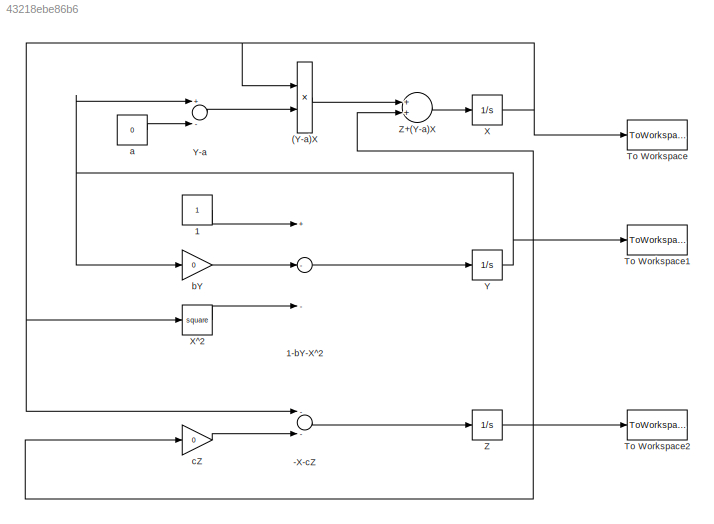
MODEL slx_43218ebe86b6
KIND model
CONFIG AbsTol = auto
CONFIG EnableMultiTasking = off
CONFIG FixedStep = 0.1
CONFIG MaxStep = auto
CONFIG MinStep = auto
CONFIG RelTol = 1e-3
CONFIG SampleTimeConstraint = Unconstrained
CONFIG Solver = ode4
CONFIG SolverName = ode4
CONFIG StartTime = 0
CONFIG StopTime = 500
BLOCK [Product] (Y-a)X
  InputSameDT = off
  OutDataTypeStr = Inherit: Inherit via internal rule
  Ports = [2, 1]
  RndMeth = Floor
  SaturateOnIntegerOverflow = off
BLOCK [Sum] -X-cZ
  InputSameDT = off
  Inputs = --
  OutDataTypeStr = Inherit: Inherit via internal rule
  Ports = [2, 1]
  SaturateOnIntegerOverflow = off
BLOCK [Constant] 1 
BLOCK [Sum] 1-bY-X^2
  InputSameDT = off
  Inputs = +--
  OutDataTypeStr = Inherit: Inherit via internal rule
  Ports = [3, 1]
  SaturateOnIntegerOverflow = off
BLOCK [ToWorkspace] To Workspace
  FixptAsFi = on
  MaxDataPoints = inf
  Ports = [1]
  SampleTime = -1
  Save2DSignal = 2-D array (concatenate along first dimension)
  VariableName = X
BLOCK [ToWorkspace] To Workspace1
  FixptAsFi = on
  MaxDataPoints = inf
  Ports = [1]
  SampleTime = -1
  Save2DSignal = 2-D array (concatenate along first dimension)
  VariableName = Y
BLOCK [ToWorkspace] To Workspace2
  FixptAsFi = on
  MaxDataPoints = inf
  Ports = [1]
  SampleTime = -1
  Save2DSignal = 2-D array (concatenate along first dimension)
  VariableName = Z
BLOCK [Integrator] X
  Ports = [1, 1]
BLOCK [Math] X^2
  Operator = square
  Ports = [1, 1]
BLOCK [Integrator] Y
  Ports = [1, 1]
BLOCK [Sum] Y-a
  InputSameDT = off
  Inputs = +-
  OutDataTypeStr = Inherit: Inherit via internal rule
  Ports = [2, 1]
  SaturateOnIntegerOverflow = off
BLOCK [Integrator] Z
  InitialCondition = 1.6
  Ports = [1, 1]
BLOCK [Sum] Z+(Y-a)X
  InputSameDT = off
  OutDataTypeStr = Inherit: Inherit via internal rule
  Ports = [2, 1]
  SaturateOnIntegerOverflow = off
BLOCK [Constant] a
  Value = 0
BLOCK [Gain] bY
  Gain = 0
  OutDataTypeStr = Inherit: Inherit via internal rule
  ParamDataTypeStr = Inherit: Inherit via internal rule
  SaturateOnIntegerOverflow = off
BLOCK [Gain] cZ
  Gain = 0
  OutDataTypeStr = Inherit: Inherit via internal rule
  ParamDataTypeStr = Inherit: Inherit via internal rule
  SaturateOnIntegerOverflow = off
LINE (Y-a)X:1 -> Z+(Y-a)X:1
LINE -X-cZ:1 -> Z:1
LINE 1 :1 -> 1-bY-X^2:1
LINE 1-bY-X^2:1 -> Y:1
NET X:1 -> (Y-a)X:1, -X-cZ:1, To Workspace:1, X^2:1
LINE X^2:1 -> 1-bY-X^2:3
LINE Y-a:1 -> (Y-a)X:2
NET Y:1 -> To Workspace1:1, Y-a:1, bY:1
LINE Z+(Y-a)X:1 -> X:1
NET Z:1 -> To Workspace2:1, Z+(Y-a)X:2, cZ:1
LINE a:1 -> Y-a:2
LINE bY:1 -> 1-bY-X^2:2
LINE cZ:1 -> -X-cZ:2
note: NET lines group one-source signal fan-out (src -> all destinations, sorted); 1:1 wires keep LINE
